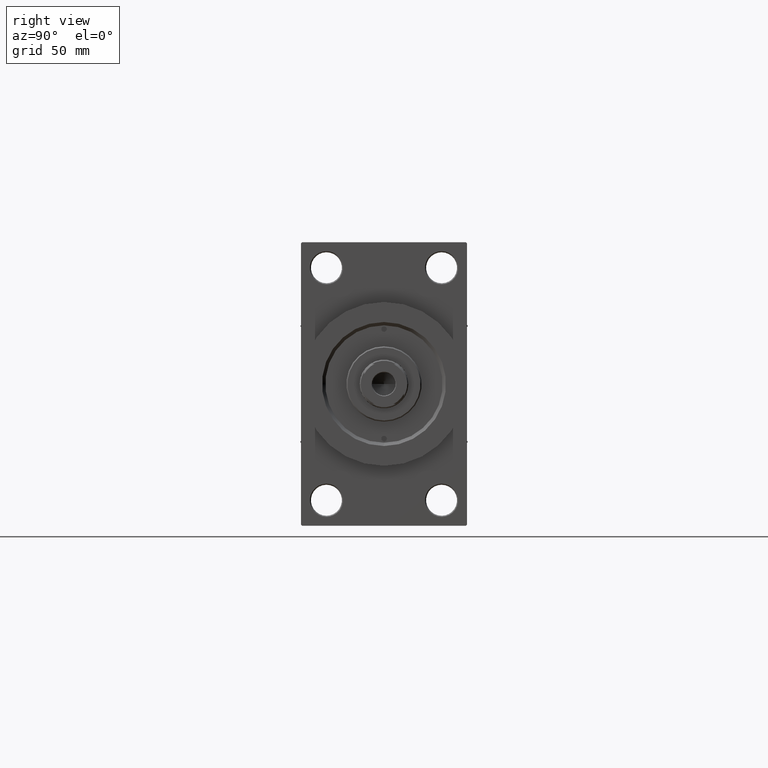
[diagram: clean part render]
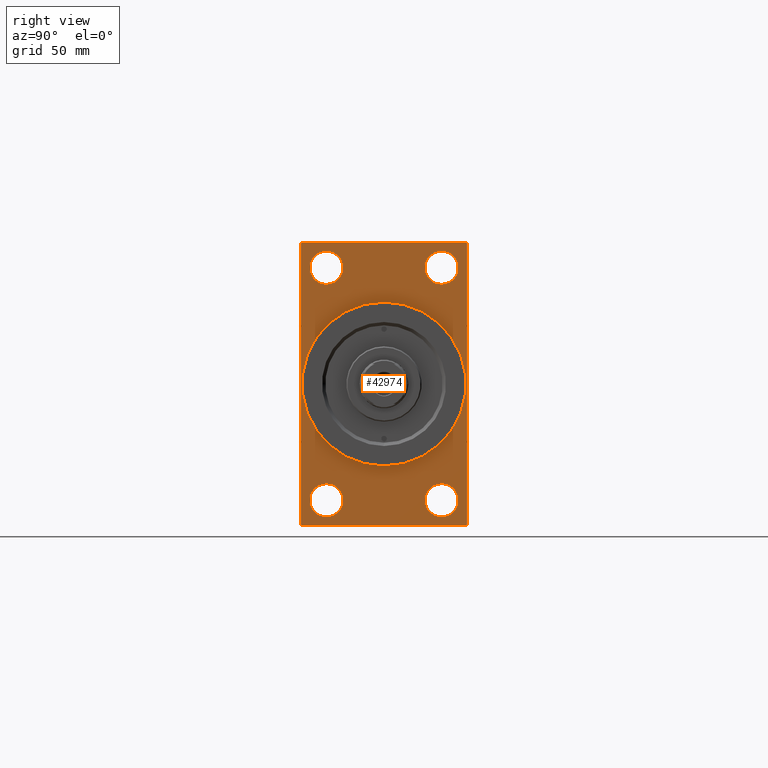
[diagram: same view with one face highlighted and labeled with its STEP entity id]
A machine part, right view. The second image highlights one B-rep face of the part: STEP entity #42974.
In plain terms, the highlighted planar face has unit normal (-1, 0, 0).
Its self-contained STEP definition (entity closure, byte-faithful):
#159 = CIRCLE ( 'NONE', #46870, 7.500000000000062172 ) ;
#358 = VERTEX_POINT ( 'NONE', #21820 ) ;
#939 = DIRECTION ( 'NONE',  ( 0.000000000000000000, 0.000000000000000000, 1.000000000000000000 ) ) ;
#1098 = ORIENTED_EDGE ( 'NONE', *, *, #26549, .T. ) ;
#1245 = AXIS2_PLACEMENT_3D ( 'NONE', #37967, #1285, #34381 ) ;
#1285 = DIRECTION ( 'NONE',  ( -1.000000000000000000, 0.000000000000000000, -0.000000000000000000 ) ) ;
#1391 = VERTEX_POINT ( 'NONE', #30029 ) ;
#1436 = ORIENTED_EDGE ( 'NONE', *, *, #17006, .F. ) ;
#2646 = LINE ( 'NONE', #24451, #28333 ) ;
#2695 = EDGE_CURVE ( 'NONE', #1391, #45479, #5857, .T. ) ;
#3169 = CARTESIAN_POINT ( 'NONE',  ( 238.0000000000000000, 0.000000000000000000, 0.000000000000000000 ) ) ;
#3684 = EDGE_LOOP ( 'NONE', ( #4663, #31169 ) ) ;
#4271 = CARTESIAN_POINT ( 'NONE',  ( 238.0000000000000000, 26.00000000000000000, -60.00000000000005684 ) ) ;
#4319 = VERTEX_POINT ( 'NONE', #19302 ) ;
#4603 = EDGE_CURVE ( 'NONE', #17403, #30418, #18097, .T. ) ;
#4663 = ORIENTED_EDGE ( 'NONE', *, *, #5786, .T. ) ;
#5002 = EDGE_LOOP ( 'NONE', ( #18958, #30224 ) ) ;
#5127 = FACE_BOUND ( 'NONE', #3684, .T. ) ;
#5249 = EDGE_CURVE ( 'NONE', #30418, #17403, #29592, .T. ) ;
#5390 = DIRECTION ( 'NONE',  ( 0.000000000000000000, -1.000000000000000000, -1.850371707708594563E-16 ) ) ;
#5750 = ORIENTED_EDGE ( 'NONE', *, *, #12396, .T. ) ;
#5786 = EDGE_CURVE ( 'NONE', #26398, #13914, #31891, .T. ) ;
#5819 = VECTOR ( 'NONE', #5390, 1000.000000000000000 ) ;
#5820 = AXIS2_PLACEMENT_3D ( 'NONE', #3169, #43902, #11063 ) ;
#5857 = LINE ( 'NONE', #30787, #5819 ) ;
#6004 = EDGE_CURVE ( 'NONE', #12026, #11622, #7585, .T. ) ;
#7585 = LINE ( 'NONE', #15003, #25039 ) ;
#8108 = CARTESIAN_POINT ( 'NONE',  ( 238.0000000000000000, 26.00000000000000000, 52.49999999999999289 ) ) ;
#8814 = EDGE_CURVE ( 'NONE', #358, #10819, #31988, .T. ) ;
#10299 = VERTEX_POINT ( 'NONE', #36733 ) ;
#10742 = EDGE_LOOP ( 'NONE', ( #26639, #1436 ) ) ;
#10819 = VERTEX_POINT ( 'NONE', #43244 ) ;
#10840 = DIRECTION ( 'NONE',  ( 0.000000000000000000, 0.7071067811865573427, -0.7071067811865378028 ) ) ;
#10849 = EDGE_CURVE ( 'NONE', #13914, #26398, #45094, .T. ) ;
#11063 = DIRECTION ( 'NONE',  ( 0.000000000000000000, 0.000000000000000000, -1.000000000000000000 ) ) ;
#11181 = DIRECTION ( 'NONE',  ( 0.000000000000000000, -5.421010862427522170E-17, -1.000000000000000000 ) ) ;
#11241 = AXIS2_PLACEMENT_3D ( 'NONE', #45294, #41217, #939 ) ;
#11253 = LINE ( 'NONE', #32820, #24457 ) ;
#11407 = AXIS2_PLACEMENT_3D ( 'NONE', #47303, #18056, #25954 ) ;
#11622 = VERTEX_POINT ( 'NONE', #44072 ) ;
#11659 = ORIENTED_EDGE ( 'NONE', *, *, #43887, .T. ) ;
#12026 = VERTEX_POINT ( 'NONE', #37168 ) ;
#12173 = DIRECTION ( 'NONE',  ( -1.000000000000000000, 0.000000000000000000, -0.000000000000000000 ) ) ;
#12396 = EDGE_CURVE ( 'NONE', #1391, #11622, #11253, .T. ) ;
#12578 = CARTESIAN_POINT ( 'NONE',  ( 238.0000000000000000, 37.50000000000000000, 63.99999999999998579 ) ) ;
#12798 = AXIS2_PLACEMENT_3D ( 'NONE', #47087, #32239, #46860 ) ;
#12802 = DIRECTION ( 'NONE',  ( -0.000000000000000000, 0.000000000000000000, 1.000000000000000000 ) ) ;
#12942 = AXIS2_PLACEMENT_3D ( 'NONE', #26637, #18741, #29309 ) ;
#13207 = ORIENTED_EDGE ( 'NONE', *, *, #43685, .T. ) ;
#13914 = VERTEX_POINT ( 'NONE', #36252 ) ;
#14026 = DIRECTION ( 'NONE',  ( 1.000000000000000000, 0.000000000000000000, 0.000000000000000000 ) ) ;
#14497 = DIRECTION ( 'NONE',  ( 0.000000000000000000, 0.000000000000000000, -1.000000000000000000 ) ) ;
#15001 = CIRCLE ( 'NONE', #5820, 37.00000000000000000 ) ;
#15003 = CARTESIAN_POINT ( 'NONE',  ( 238.0000000000000000, 37.50000000000000000, 63.99999999999998579 ) ) ;
#15161 = CARTESIAN_POINT ( 'NONE',  ( 238.0000000000000000, -36.99999999999992895, 63.99999999999997158 ) ) ;
#15202 = EDGE_LOOP ( 'NONE', ( #39368, #22458 ) ) ;
#16619 = EDGE_LOOP ( 'NONE', ( #27721, #1098, #36371, #5750, #41298, #13207, #11659, #19969 ) ) ;
#16879 = EDGE_CURVE ( 'NONE', #30647, #23404, #19462, .T. ) ;
#16881 = DIRECTION ( 'NONE',  ( 0.000000000000000000, -1.000000000000000000, -1.850371707708594563E-16 ) ) ;
#17006 = EDGE_CURVE ( 'NONE', #10819, #358, #15001, .T. ) ;
#17034 = DIRECTION ( 'NONE',  ( -1.000000000000000000, 0.000000000000000000, -0.000000000000000000 ) ) ;
#17290 = VECTOR ( 'NONE', #33629, 1000.000000000000000 ) ;
#17403 = VERTEX_POINT ( 'NONE', #4271 ) ;
#17514 = VERTEX_POINT ( 'NONE', #32518 ) ;
#17599 = EDGE_LOOP ( 'NONE', ( #33256, #31981 ) ) ;
#18056 = DIRECTION ( 'NONE',  ( -1.000000000000000000, 0.000000000000000000, -0.000000000000000000 ) ) ;
#18070 = CARTESIAN_POINT ( 'NONE',  ( 238.0000000000000000, 26.00000000000000000, -52.49999999999999289 ) ) ;
#18097 = CIRCLE ( 'NONE', #19595, 7.500000000000062172 ) ;
#18307 = VERTEX_POINT ( 'NONE', #40604 ) ;
#18319 = CARTESIAN_POINT ( 'NONE',  ( 238.0000000000000000, -37.49999999999999289, -63.50000000000002842 ) ) ;
#18741 = DIRECTION ( 'NONE',  ( -1.000000000000000000, 0.000000000000000000, -0.000000000000000000 ) ) ;
#18892 = DIRECTION ( 'NONE',  ( -0.000000000000000000, 0.7071067811865573427, 0.7071067811865378028 ) ) ;
#18958 = ORIENTED_EDGE ( 'NONE', *, *, #27096, .T. ) ;
#19302 = CARTESIAN_POINT ( 'NONE',  ( 238.0000000000000000, -25.99999999999999645, 44.99999999999993605 ) ) ;
#19462 = LINE ( 'NONE', #37686, #17290 ) ;
#19495 = PLANE ( 'NONE',  #38638 ) ;
#19595 = AXIS2_PLACEMENT_3D ( 'NONE', #18070, #32697, #25965 ) ;
#19737 = CARTESIAN_POINT ( 'NONE',  ( 238.0000000000000000, 0.000000000000000000, 0.000000000000000000 ) ) ;
#19969 = ORIENTED_EDGE ( 'NONE', *, *, #30060, .T. ) ;
#20206 = FACE_BOUND ( 'NONE', #5002, .T. ) ;
#21127 = CARTESIAN_POINT ( 'NONE',  ( 238.0000000000000000, -25.99999999999999645, -60.00000000000005684 ) ) ;
#21509 = CARTESIAN_POINT ( 'NONE',  ( 238.0000000000000000, 26.00000000000000000, -44.99999999999992895 ) ) ;
#21820 = CARTESIAN_POINT ( 'NONE',  ( 238.0000000000000000, 0.000000000000000000, 37.00000000000000000 ) ) ;
#22458 = ORIENTED_EDGE ( 'NONE', *, *, #5249, .T. ) ;
#23098 = FACE_BOUND ( 'NONE', #17599, .T. ) ;
#23109 = LINE ( 'NONE', #12578, #32805 ) ;
#23404 = VERTEX_POINT ( 'NONE', #18319 ) ;
#23585 = CIRCLE ( 'NONE', #31268, 7.500000000000062172 ) ;
#23602 = VECTOR ( 'NONE', #44695, 1000.000000000000114 ) ;
#24085 = CARTESIAN_POINT ( 'NONE',  ( 238.0000000000000000, -37.49999999999999289, 63.49999999999991473 ) ) ;
#24350 = AXIS2_PLACEMENT_3D ( 'NONE', #39193, #14026, #14497 ) ;
#24366 = EDGE_CURVE ( 'NONE', #17514, #10299, #33465, .T. ) ;
#24418 = CIRCLE ( 'NONE', #12942, 7.500000000000062172 ) ;
#24451 = CARTESIAN_POINT ( 'NONE',  ( 238.0000000000000000, -37.49999999999999289, 63.49999999999991473 ) ) ;
#24457 = VECTOR ( 'NONE', #18892, 1000.000000000000000 ) ;
#24687 = DIRECTION ( 'NONE',  ( -0.000000000000000000, -0.7071067811865524577, -0.7071067811865426878 ) ) ;
#25039 = VECTOR ( 'NONE', #11181, 1000.000000000000000 ) ;
#25903 = LINE ( 'NONE', #29047, #35075 ) ;
#25954 = DIRECTION ( 'NONE',  ( 0.000000000000000000, 0.000000000000000000, 1.000000000000000000 ) ) ;
#25965 = DIRECTION ( 'NONE',  ( 0.000000000000000000, 0.000000000000000000, 1.000000000000000000 ) ) ;
#26398 = VERTEX_POINT ( 'NONE', #21127 ) ;
#26549 = EDGE_CURVE ( 'NONE', #23404, #45479, #25903, .T. ) ;
#26637 = CARTESIAN_POINT ( 'NONE',  ( 238.0000000000000000, -25.99999999999999645, 52.50000000000000000 ) ) ;
#26639 = ORIENTED_EDGE ( 'NONE', *, *, #8814, .F. ) ;
#27096 = EDGE_CURVE ( 'NONE', #4319, #18307, #23585, .T. ) ;
#27165 = DIRECTION ( 'NONE',  ( -1.000000000000000000, 0.000000000000000000, -0.000000000000000000 ) ) ;
#27721 = ORIENTED_EDGE ( 'NONE', *, *, #16879, .T. ) ;
#28043 = CARTESIAN_POINT ( 'NONE',  ( 238.0000000000000000, -25.99999999999999645, 52.50000000000000000 ) ) ;
#28236 = EDGE_CURVE ( 'NONE', #18307, #4319, #24418, .T. ) ;
#28333 = VECTOR ( 'NONE', #24687, 1000.000000000000000 ) ;
#29047 = CARTESIAN_POINT ( 'NONE',  ( 238.0000000000000000, -36.99999999999999289, -64.00000000000001421 ) ) ;
#29218 = VERTEX_POINT ( 'NONE', #15161 ) ;
#29309 = DIRECTION ( 'NONE',  ( 0.000000000000000000, 0.000000000000000000, 1.000000000000000000 ) ) ;
#29592 = CIRCLE ( 'NONE', #1245, 7.500000000000062172 ) ;
#30029 = CARTESIAN_POINT ( 'NONE',  ( 238.0000000000000000, 36.99999999999999289, -64.00000000000000000 ) ) ;
#30060 = EDGE_CURVE ( 'NONE', #29218, #30647, #2646, .T. ) ;
#30075 = CARTESIAN_POINT ( 'NONE',  ( 238.0000000000000000, 37.00000000000000000, 63.99999999999998579 ) ) ;
#30178 = VERTEX_POINT ( 'NONE', #32596 ) ;
#30224 = ORIENTED_EDGE ( 'NONE', *, *, #28236, .T. ) ;
#30418 = VERTEX_POINT ( 'NONE', #21509 ) ;
#30647 = VERTEX_POINT ( 'NONE', #24085 ) ;
#30787 = CARTESIAN_POINT ( 'NONE',  ( 238.0000000000000000, 37.49999999999999289, -64.00000000000000000 ) ) ;
#31169 = ORIENTED_EDGE ( 'NONE', *, *, #10849, .T. ) ;
#31241 = FACE_BOUND ( 'NONE', #15202, .T. ) ;
#31268 = AXIS2_PLACEMENT_3D ( 'NONE', #28043, #17034, #38839 ) ;
#31891 = CIRCLE ( 'NONE', #11241, 7.500000000000062172 ) ;
#31981 = ORIENTED_EDGE ( 'NONE', *, *, #39780, .T. ) ;
#31988 = CIRCLE ( 'NONE', #24350, 37.00000000000000000 ) ;
#32239 = DIRECTION ( 'NONE',  ( -1.000000000000000000, 0.000000000000000000, -0.000000000000000000 ) ) ;
#32518 = CARTESIAN_POINT ( 'NONE',  ( 238.0000000000000000, 26.00000000000000000, 44.99999999999992895 ) ) ;
#32596 = CARTESIAN_POINT ( 'NONE',  ( 238.0000000000000000, 37.00000000000000000, 63.99999999999998579 ) ) ;
#32697 = DIRECTION ( 'NONE',  ( -1.000000000000000000, 0.000000000000000000, -0.000000000000000000 ) ) ;
#32805 = VECTOR ( 'NONE', #16881, 1000.000000000000000 ) ;
#32820 = CARTESIAN_POINT ( 'NONE',  ( 238.0000000000000000, 37.49999999999999289, -63.50000000000001421 ) ) ;
#33256 = ORIENTED_EDGE ( 'NONE', *, *, #24366, .T. ) ;
#33465 = CIRCLE ( 'NONE', #12798, 7.500000000000062172 ) ;
#33629 = DIRECTION ( 'NONE',  ( 0.000000000000000000, 0.000000000000000000, -1.000000000000000000 ) ) ;
#34371 = FACE_OUTER_BOUND ( 'NONE', #16619, .T. ) ;
#34381 = DIRECTION ( 'NONE',  ( 0.000000000000000000, 0.000000000000000000, 1.000000000000000000 ) ) ;
#35075 = VECTOR ( 'NONE', #10840, 1000.000000000000000 ) ;
#36252 = CARTESIAN_POINT ( 'NONE',  ( 238.0000000000000000, -25.99999999999999645, -44.99999999999992895 ) ) ;
#36371 = ORIENTED_EDGE ( 'NONE', *, *, #2695, .F. ) ;
#36733 = CARTESIAN_POINT ( 'NONE',  ( 238.0000000000000000, 26.00000000000000000, 60.00000000000005684 ) ) ;
#36811 = LINE ( 'NONE', #30075, #23602 ) ;
#37168 = CARTESIAN_POINT ( 'NONE',  ( 238.0000000000000000, 37.50000000000000000, 63.49999999999998579 ) ) ;
#37686 = CARTESIAN_POINT ( 'NONE',  ( 238.0000000000000000, -37.49999999999999289, 63.99999999999997158 ) ) ;
#37967 = CARTESIAN_POINT ( 'NONE',  ( 238.0000000000000000, 26.00000000000000000, -52.49999999999999289 ) ) ;
#38638 = AXIS2_PLACEMENT_3D ( 'NONE', #19737, #27165, #12802 ) ;
#38839 = DIRECTION ( 'NONE',  ( 0.000000000000000000, 0.000000000000000000, 1.000000000000000000 ) ) ;
#39193 = CARTESIAN_POINT ( 'NONE',  ( 238.0000000000000000, 0.000000000000000000, 0.000000000000000000 ) ) ;
#39368 = ORIENTED_EDGE ( 'NONE', *, *, #4603, .T. ) ;
#39780 = EDGE_CURVE ( 'NONE', #10299, #17514, #159, .T. ) ;
#40604 = CARTESIAN_POINT ( 'NONE',  ( 238.0000000000000000, -25.99999999999999645, 60.00000000000005684 ) ) ;
#41217 = DIRECTION ( 'NONE',  ( -1.000000000000000000, 0.000000000000000000, -0.000000000000000000 ) ) ;
#41298 = ORIENTED_EDGE ( 'NONE', *, *, #6004, .F. ) ;
#41371 = CARTESIAN_POINT ( 'NONE',  ( 238.0000000000000000, -36.99999999999999289, -64.00000000000001421 ) ) ;
#42974 = ADVANCED_FACE ( 'NONE', ( #20206, #5127, #31241, #23098, #45866, #34371 ), #19495, .F. ) ;
#43244 = CARTESIAN_POINT ( 'NONE',  ( 238.0000000000000000, 4.531193156845206793E-15, -37.00000000000000000 ) ) ;
#43685 = EDGE_CURVE ( 'NONE', #12026, #30178, #36811, .T. ) ;
#43887 = EDGE_CURVE ( 'NONE', #30178, #29218, #23109, .T. ) ;
#43902 = DIRECTION ( 'NONE',  ( 1.000000000000000000, 0.000000000000000000, 0.000000000000000000 ) ) ;
#44072 = CARTESIAN_POINT ( 'NONE',  ( 238.0000000000000000, 37.49999999999999289, -63.50000000000001421 ) ) ;
#44695 = DIRECTION ( 'NONE',  ( 0.000000000000000000, -0.7071067811865474617, 0.7071067811865474617 ) ) ;
#44763 = DIRECTION ( 'NONE',  ( 0.000000000000000000, 0.000000000000000000, 1.000000000000000000 ) ) ;
#45094 = CIRCLE ( 'NONE', #11407, 7.500000000000062172 ) ;
#45294 = CARTESIAN_POINT ( 'NONE',  ( 238.0000000000000000, -25.99999999999999645, -52.49999999999999289 ) ) ;
#45479 = VERTEX_POINT ( 'NONE', #41371 ) ;
#45866 = FACE_BOUND ( 'NONE', #10742, .T. ) ;
#46860 = DIRECTION ( 'NONE',  ( 0.000000000000000000, 0.000000000000000000, 1.000000000000000000 ) ) ;
#46870 = AXIS2_PLACEMENT_3D ( 'NONE', #8108, #12173, #44763 ) ;
#47087 = CARTESIAN_POINT ( 'NONE',  ( 238.0000000000000000, 26.00000000000000000, 52.49999999999999289 ) ) ;
#47303 = CARTESIAN_POINT ( 'NONE',  ( 238.0000000000000000, -25.99999999999999645, -52.49999999999999289 ) ) ;